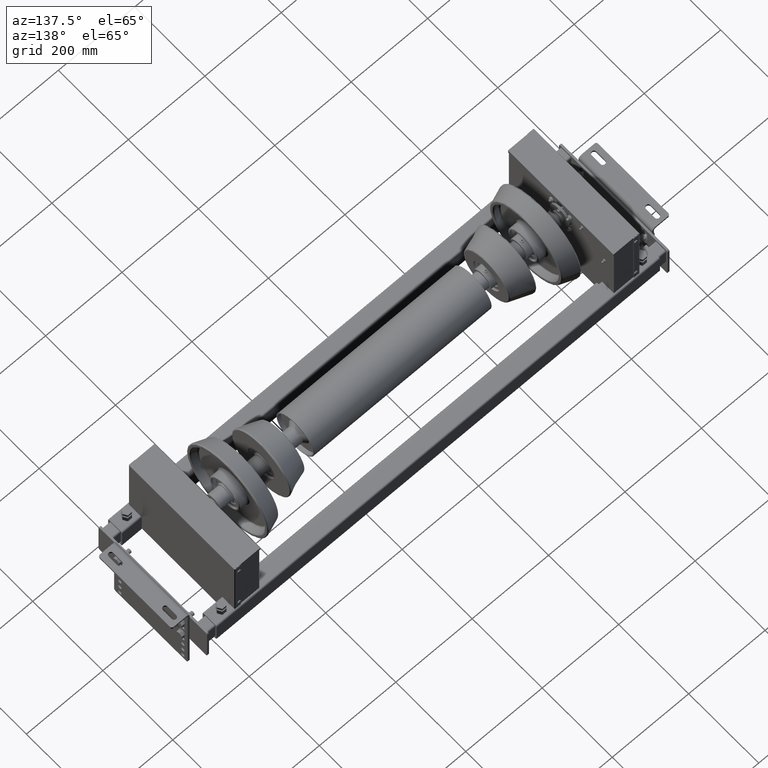
[diagram: clean part render]
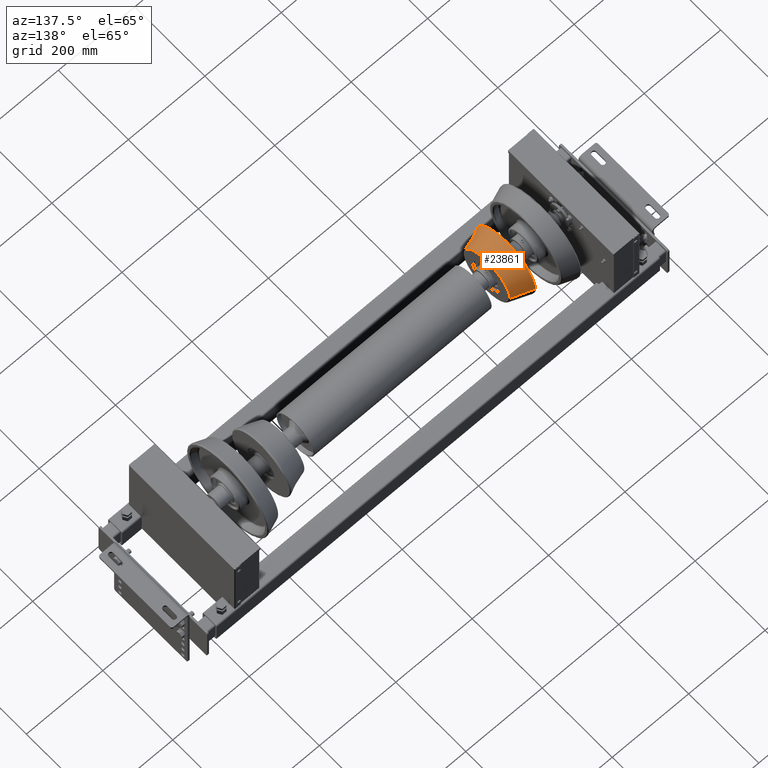
[diagram: same view with one face highlighted and labeled with its STEP entity id]
A machine part, auxiliary view. The second image highlights one B-rep face of the part: STEP entity #23861.
In plain terms, the highlighted conical surface has half-angle 20 deg.
Its self-contained STEP definition (entity closure, byte-faithful):
#23764=CARTESIAN_POINT('',(-25.855050358314166,0.0,-65.580349821799402));
#23765=VERTEX_POINT('',#23764);
#23775=CARTESIAN_POINT('',(-25.855050358314166,-65.580349821799388,-8.031277E-015));
#23776=VERTEX_POINT('',#23775);
#23777=CARTESIAN_POINT('',(-25.855050358314166,0.0,-8.031011E-015));
#23778=DIRECTION('',(-1.0,0.0,0.0));
#23779=DIRECTION('',(0.0,-1.0,0.0));
#23780=AXIS2_PLACEMENT_3D('',#23777,#23778,#23779);
#23781=CIRCLE('',#23780,65.580349821799388);
#23782=EDGE_CURVE('',#23765,#23776,#23781,.T.);
#23812=CARTESIAN_POINT('',(0.0,0.0,0.0));
#23813=DIRECTION('',(1.0,0.0,0.0));
#23814=DIRECTION('',(0.0,1.0,0.0));
#23815=AXIS2_PLACEMENT_3D('',#23812,#23813,#23814);
#23816=CONICAL_SURFACE('',#23815,74.990818557679447,19.999999999999993);
#23817=CARTESIAN_POINT('',(24.144949641685823,83.778861535109485,0.0));
#23818=VERTEX_POINT('',#23817);
#23819=CARTESIAN_POINT('',(-25.855050358314166,65.580349821799388,-1.606202E-014));
#23820=VERTEX_POINT('',#23819);
#23821=CARTESIAN_POINT('',(24.144949641685823,83.778861535109485,0.0));
#23822=DIRECTION('',(-0.939692620785908,-0.342020143325668,-3.018673E-016));
#23823=VECTOR('',#23822,53.208888623795588);
#23824=LINE('',#23821,#23823);
#23825=EDGE_CURVE('',#23818,#23820,#23824,.T.);
#23826=ORIENTED_EDGE('',*,*,#23825,.F.);
#23827=CARTESIAN_POINT('',(24.144949641685827,0.0,-83.778861535109499));
#23828=VERTEX_POINT('',#23827);
#23829=CARTESIAN_POINT('',(24.144949641685823,0.0,-1.025961E-014));
#23830=DIRECTION('',(1.0,0.0,0.0));
#23831=DIRECTION('',(0.0,-1.0,0.0));
#23832=AXIS2_PLACEMENT_3D('',#23829,#23830,#23831);
#23833=CIRCLE('',#23832,83.778861535109485);
#23834=EDGE_CURVE('',#23828,#23818,#23833,.T.);
#23835=ORIENTED_EDGE('',*,*,#23834,.F.);
#23836=CARTESIAN_POINT('',(24.144949641685827,-83.778861535109485,-1.025995E-014));
#23837=VERTEX_POINT('',#23836);
#23838=CARTESIAN_POINT('',(24.144949641685823,0.0,-1.025961E-014));
#23839=DIRECTION('',(1.0,0.0,0.0));
#23840=DIRECTION('',(0.0,-1.0,0.0));
#23841=AXIS2_PLACEMENT_3D('',#23838,#23839,#23840);
#23842=CIRCLE('',#23841,83.778861535109485);
#23843=EDGE_CURVE('',#23837,#23828,#23842,.T.);
#23844=ORIENTED_EDGE('',*,*,#23843,.F.);
#23845=CARTESIAN_POINT('',(24.144949641685827,-83.778861535109485,-1.025995E-014));
#23846=DIRECTION('',(-0.939692620785909,0.342020143325668,4.188539E-017));
#23847=VECTOR('',#23846,53.208888623795588);
#23848=LINE('',#23845,#23847);
#23849=EDGE_CURVE('',#23837,#23776,#23848,.T.);
#23850=ORIENTED_EDGE('',*,*,#23849,.T.);
#23851=ORIENTED_EDGE('',*,*,#23782,.F.);
#23852=CARTESIAN_POINT('',(-25.855050358314166,0.0,-8.031011E-015));
#23853=DIRECTION('',(-1.0,0.0,0.0));
#23854=DIRECTION('',(0.0,-1.0,0.0));
#23855=AXIS2_PLACEMENT_3D('',#23852,#23853,#23854);
#23856=CIRCLE('',#23855,65.580349821799388);
#23857=EDGE_CURVE('',#23820,#23765,#23856,.T.);
#23858=ORIENTED_EDGE('',*,*,#23857,.F.);
#23859=EDGE_LOOP('',(#23826,#23835,#23844,#23850,#23851,#23858));
#23860=FACE_OUTER_BOUND('',#23859,.T.);
#23861=ADVANCED_FACE('',(#23860),#23816,.T.);